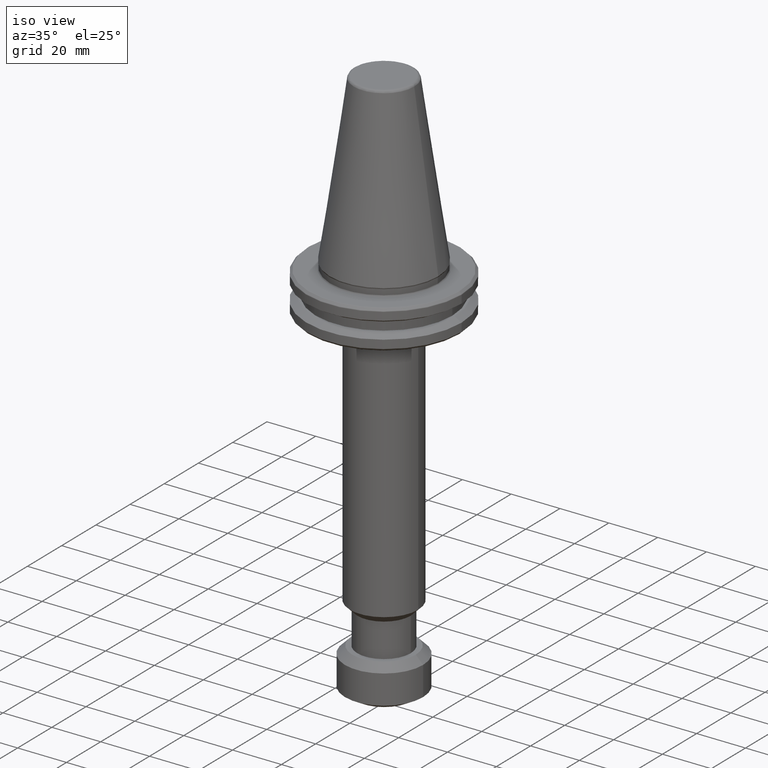
[diagram: clean part render]
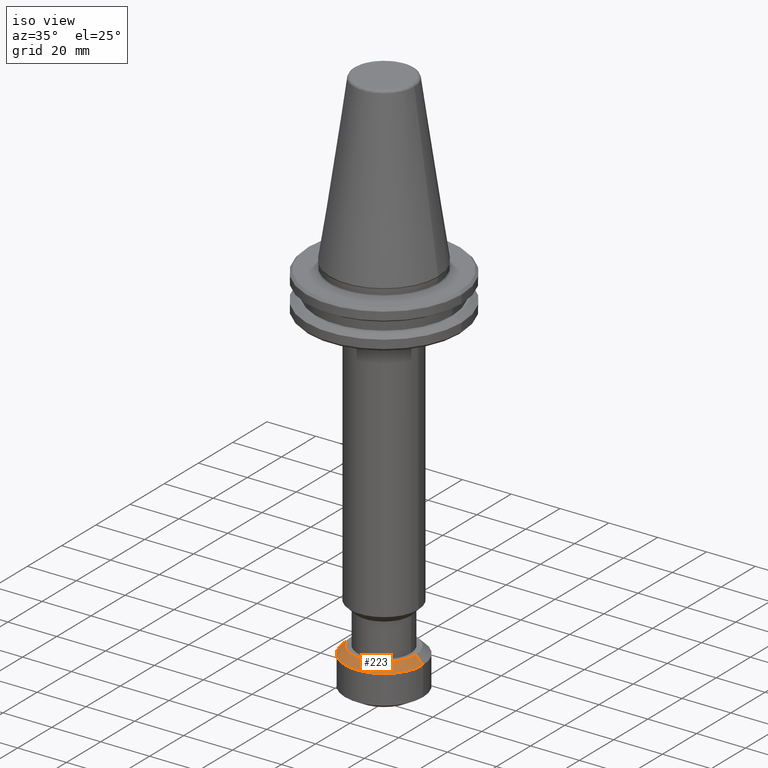
[diagram: same view with one face highlighted and labeled with its STEP entity id]
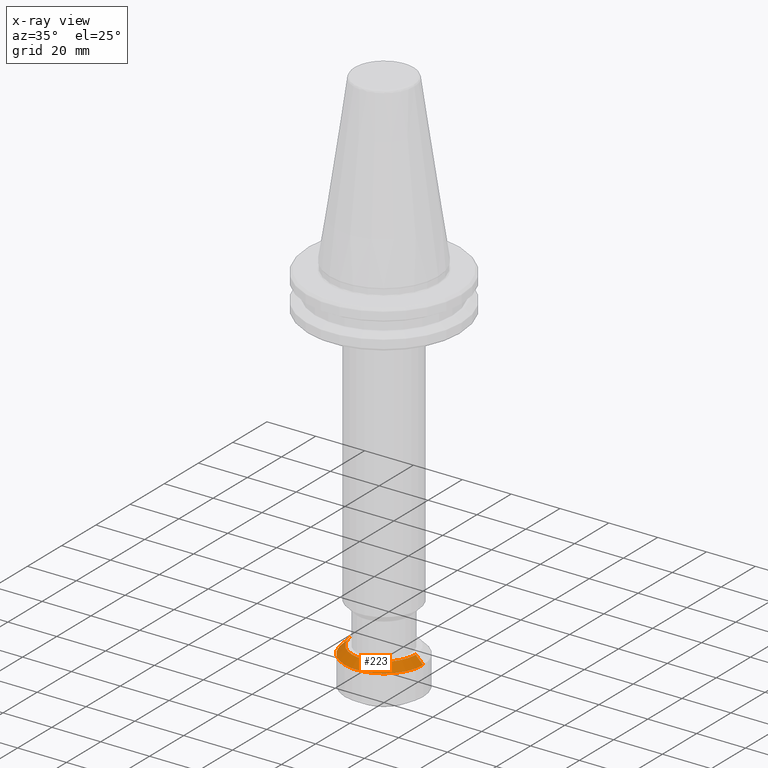
[diagram: x-ray of the same camera — body ghosted, the highlighted face saturated]
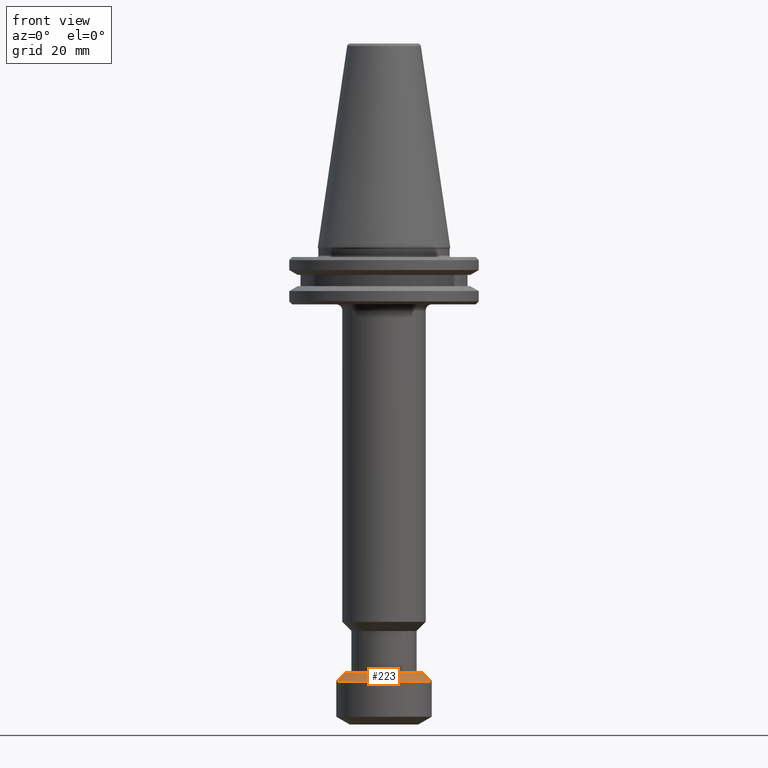
[diagram: same view with one face highlighted and labeled with its STEP entity id]
A machine part, iso view. The second image highlights one B-rep face of the part: STEP entity #223.
The next image is the same camera in x-ray: the body ghosted, the highlighted face saturated — about 0% of this face is hidden behind the body in this view.
A second angle (front view) of the same face is appended — the face is thin or edge-on in the first view.
In plain terms, the highlighted conical surface has half-angle 45 deg.
Its self-contained STEP definition (entity closure, byte-faithful):
#65 = DIRECTION ( 'NONE',  ( -0.0000000000000000000, -0.0000000000000000000, 1.000000000000000000 ) ) ;
#71 = VERTEX_POINT ( 'NONE', #293 ) ;
#141 = VECTOR ( 'NONE', #682, 1000.000000000000000 ) ;
#223 = ADVANCED_FACE ( 'NONE', ( #349 ), #311, .T. ) ;
#293 = CARTESIAN_POINT ( 'NONE',  ( -12.99999999999994700, 0.0000000000000000000, -142.5000000000000000 ) ) ;
#311 = CONICAL_SURFACE ( 'NONE', #515, 16.00000000000002800, 0.7853981633974520500 ) ;
#332 = CARTESIAN_POINT ( 'NONE',  ( 16.00000000000003900, 0.0000000000000000000, -145.5000000000000600 ) ) ;
#349 = FACE_OUTER_BOUND ( 'NONE', #924, .T. ) ;
#350 = ORIENTED_EDGE ( 'NONE', *, *, #998, .F. ) ;
#377 = CARTESIAN_POINT ( 'NONE',  ( 0.0000000000000000000, 0.0000000000000000000, -145.5000000000000600 ) ) ;
#419 = EDGE_CURVE ( 'NONE', #71, #1147, #506, .T. ) ;
#506 = LINE ( 'NONE', #922, #141 ) ;
#515 = AXIS2_PLACEMENT_3D ( 'NONE', #818, #964, #871 ) ;
#549 = CARTESIAN_POINT ( 'NONE',  ( 16.00000000000002800, 1.959434878635768700E-015, -145.5000000000000600 ) ) ;
#556 = CARTESIAN_POINT ( 'NONE',  ( -16.00000000000003900, 1.959434878635769500E-015, -145.5000000000000600 ) ) ;
#581 = CIRCLE ( 'NONE', #1513, 16.00000000000003900 ) ;
#604 = ORIENTED_EDGE ( 'NONE', *, *, #1056, .F. ) ;
#628 = CARTESIAN_POINT ( 'NONE',  ( 12.99999999999994700, 1.775737858763661200E-015, -142.5000000000000000 ) ) ;
#657 = VECTOR ( 'NONE', #1083, 1000.000000000000000 ) ;
#682 = DIRECTION ( 'NONE',  ( -0.7071067811865501300, 0.0000000000000000000, -0.7071067811865449100 ) ) ;
#714 = AXIS2_PLACEMENT_3D ( 'NONE', #1092, #65, #769 ) ;
#769 = DIRECTION ( 'NONE',  ( -1.000000000000000000, 0.0000000000000000000, 0.0000000000000000000 ) ) ;
#818 = CARTESIAN_POINT ( 'NONE',  ( 0.0000000000000000000, 0.0000000000000000000, -145.5000000000000600 ) ) ;
#829 = EDGE_CURVE ( 'NONE', #1147, #1061, #581, .T. ) ;
#836 = DIRECTION ( 'NONE',  ( -1.000000000000000000, 0.0000000000000000000, 0.0000000000000000000 ) ) ;
#871 = DIRECTION ( 'NONE',  ( -1.000000000000000000, 0.0000000000000000000, 0.0000000000000000000 ) ) ;
#922 = CARTESIAN_POINT ( 'NONE',  ( -16.00000000000002800, 0.0000000000000000000, -145.5000000000000600 ) ) ;
#924 = EDGE_LOOP ( 'NONE', ( #350, #604, #1353, #1470 ) ) ;
#964 = DIRECTION ( 'NONE',  ( 0.0000000000000000000, 0.0000000000000000000, -1.000000000000000000 ) ) ;
#998 = EDGE_CURVE ( 'NONE', #1170, #1061, #1075, .T. ) ;
#1056 = EDGE_CURVE ( 'NONE', #71, #1170, #1526, .T. ) ;
#1061 = VERTEX_POINT ( 'NONE', #332 ) ;
#1075 = LINE ( 'NONE', #549, #657 ) ;
#1083 = DIRECTION ( 'NONE',  ( 0.7071067811865501300, 8.659560562354964900E-017, -0.7071067811865449100 ) ) ;
#1092 = CARTESIAN_POINT ( 'NONE',  ( 0.0000000000000000000, 0.0000000000000000000, -142.5000000000000000 ) ) ;
#1147 = VERTEX_POINT ( 'NONE', #556 ) ;
#1170 = VERTEX_POINT ( 'NONE', #628 ) ;
#1353 = ORIENTED_EDGE ( 'NONE', *, *, #419, .T. ) ;
#1460 = DIRECTION ( 'NONE',  ( -0.0000000000000000000, -0.0000000000000000000, 1.000000000000000000 ) ) ;
#1470 = ORIENTED_EDGE ( 'NONE', *, *, #829, .T. ) ;
#1513 = AXIS2_PLACEMENT_3D ( 'NONE', #377, #1460, #836 ) ;
#1526 = CIRCLE ( 'NONE', #714, 12.99999999999994700 ) ;